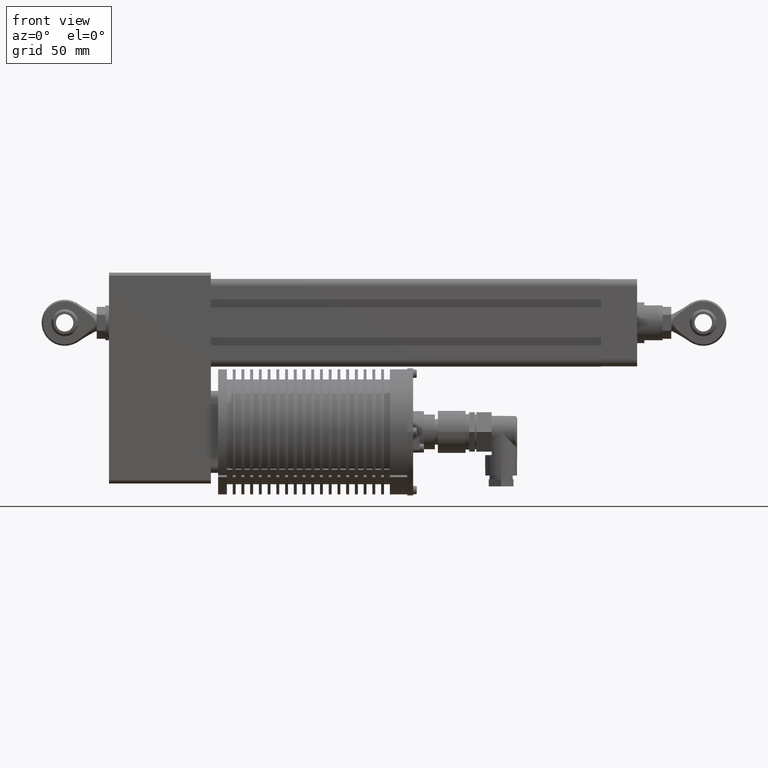
[diagram: clean part render]
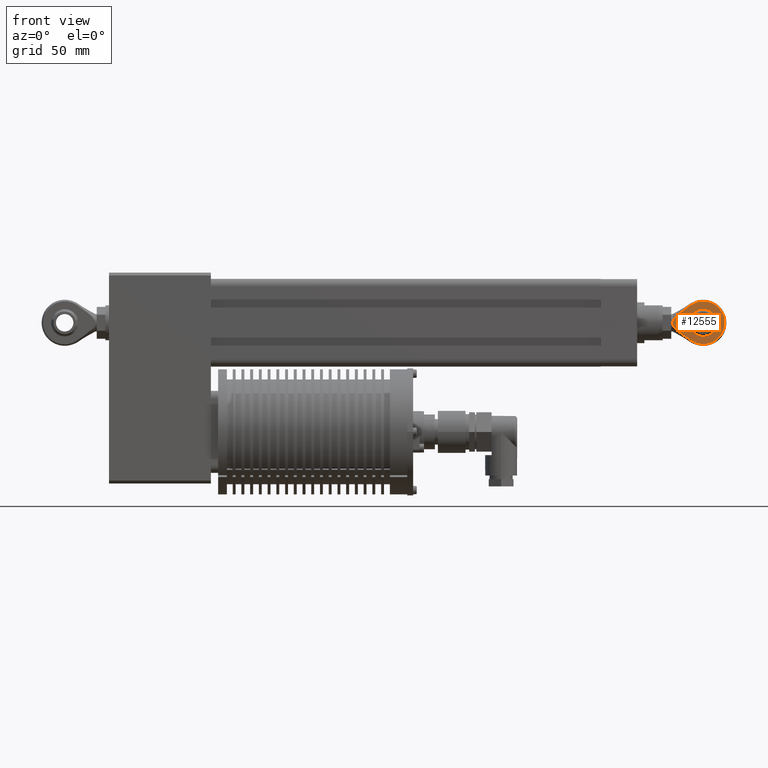
[diagram: same view with one face highlighted and labeled with its STEP entity id]
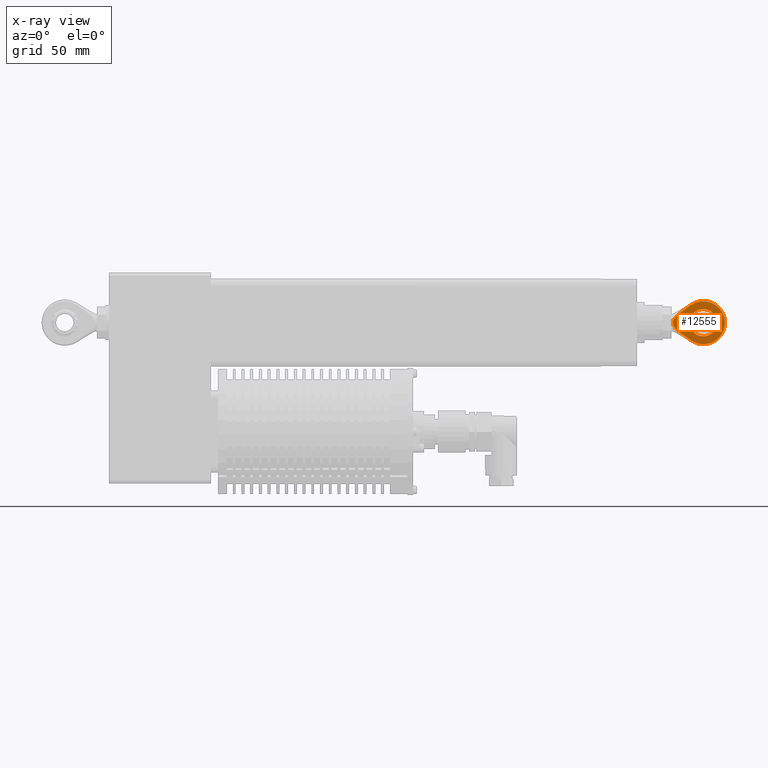
[diagram: x-ray of the same camera — body ghosted, the highlighted face saturated]
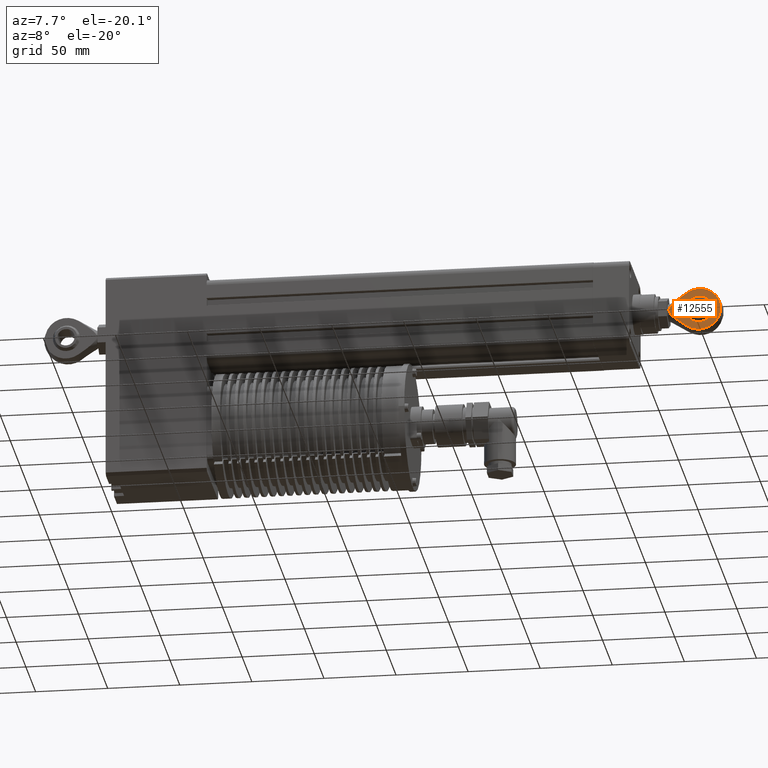
[diagram: same view with one face highlighted and labeled with its STEP entity id]
A machine part, front view. The second image highlights one B-rep face of the part: STEP entity #12555.
The next image is the same camera in x-ray: the body ghosted, the highlighted face saturated — about 0% of this face is hidden behind the body in this view.
A second angle (auxiliary view) of the same face is appended — the face is thin or edge-on in the first view.
In plain terms, the highlighted planar face has unit normal (-0, -1, -0).
Its self-contained STEP definition (entity closure, byte-faithful):
#12310=CARTESIAN_POINT('',(-9.661370550235969,0.0,-6.0));
#12311=VERTEX_POINT('',#12310);
#12328=CARTESIAN_POINT('',(-28.338629449764024,-1.143652E-015,-6.0));
#12329=VERTEX_POINT('',#12328);
#12337=CARTESIAN_POINT('',(-18.999999999999996,9.338629449764028,-6.0));
#12338=VERTEX_POINT('',#12337);
#12339=CARTESIAN_POINT('',(-18.999999999999996,0.0,-6.0));
#12340=DIRECTION('',(0.0,0.0,1.0));
#12341=DIRECTION('',(0.0,-1.0,0.0));
#12342=AXIS2_PLACEMENT_3D('',#12339,#12340,#12341);
#12343=CIRCLE('',#12342,9.338629449764028);
#12344=EDGE_CURVE('',#12338,#12329,#12343,.T.);
#12346=CARTESIAN_POINT('',(-18.999999999999996,0.0,-6.0));
#12347=DIRECTION('',(0.0,0.0,1.0));
#12348=DIRECTION('',(0.0,-1.0,0.0));
#12349=AXIS2_PLACEMENT_3D('',#12346,#12347,#12348);
#12350=CIRCLE('',#12349,9.338629449764028);
#12351=EDGE_CURVE('',#12311,#12338,#12350,.T.);
#12388=CARTESIAN_POINT('',(2.0,0.0,-6.0));
#12389=VERTEX_POINT('',#12388);
#12500=CARTESIAN_POINT('',(35.0,-15.999999999999996,-6.0));
#12501=DIRECTION('',(0.0,0.0,-1.0));
#12502=DIRECTION('',(-1.0,0.0,0.0));
#12503=AXIS2_PLACEMENT_3D('',#12500,#12501,#12502);
#12504=PLANE('',#12503);
#12505=CARTESIAN_POINT('',(-10.721472955435168,-12.307151984614830,-6.0));
#12506=VERTEX_POINT('',#12505);
#12507=CARTESIAN_POINT('',(2.0,0.0,-6.0));
#12508=CARTESIAN_POINT('',(2.000000000000007,-3.749927856731750,-5.999999999999999));
#12509=CARTESIAN_POINT('',(-10.721472955435171,-12.307151984614833,-6.0));
#12517=(BOUNDED_CURVE()B_SPLINE_CURVE(2,(#12507,#12508,#12509),.UNSPECIFIED.,.F.,.U.)B_SPLINE_CURVE_WITH_KNOTS((3,3),(18.002895112008090,36.005790224016181),.UNSPECIFIED.)CURVE()GEOMETRIC_REPRESENTATION_ITEM()RATIONAL_B_SPLINE_CURVE((1.0,1.281009433047813,1.0))REPRESENTATION_ITEM(''));
#12518=EDGE_CURVE('',#12389,#12506,#12517,.T.);
#12519=ORIENTED_EDGE('',*,*,#12518,.T.);
#12520=CARTESIAN_POINT('',(-10.721472955435168,12.307151984614830,-6.0));
#12521=VERTEX_POINT('',#12520);
#12522=CARTESIAN_POINT('',(-18.999999999999996,0.0,-6.0));
#12523=DIRECTION('',(0.0,0.0,-1.0));
#12524=DIRECTION('',(0.0,-1.0,0.0));
#12525=AXIS2_PLACEMENT_3D('',#12522,#12523,#12524);
#12526=CIRCLE('',#12525,14.832396974191326);
#12527=EDGE_CURVE('',#12506,#12521,#12526,.T.);
#12528=ORIENTED_EDGE('',*,*,#12527,.T.);
#12529=CARTESIAN_POINT('',(-10.721472955435171,12.307151984614833,-6.0));
#12530=CARTESIAN_POINT('',(2.000000000000007,3.749927856731750,-5.999999999999999));
#12531=CARTESIAN_POINT('',(2.0,0.0,-6.0));
#12539=(BOUNDED_CURVE()B_SPLINE_CURVE(2,(#12529,#12530,#12531),.UNSPECIFIED.,.F.,.U.)B_SPLINE_CURVE_WITH_KNOTS((3,3),(0.0,18.002895112008090),.UNSPECIFIED.)CURVE()GEOMETRIC_REPRESENTATION_ITEM()RATIONAL_B_SPLINE_CURVE((1.0,1.281009433047813,1.0))REPRESENTATION_ITEM(''));
#12540=EDGE_CURVE('',#12521,#12389,#12539,.T.);
#12541=ORIENTED_EDGE('',*,*,#12540,.T.);
#12542=EDGE_LOOP('',(#12519,#12528,#12541));
#12543=FACE_OUTER_BOUND('',#12542,.T.);
#12544=ORIENTED_EDGE('',*,*,#12344,.T.);
#12545=CARTESIAN_POINT('',(-18.999999999999996,0.0,-6.0));
#12546=DIRECTION('',(0.0,0.0,1.0));
#12547=DIRECTION('',(0.0,-1.0,0.0));
#12548=AXIS2_PLACEMENT_3D('',#12545,#12546,#12547);
#12549=CIRCLE('',#12548,9.338629449764028);
#12550=EDGE_CURVE('',#12329,#12311,#12549,.T.);
#12551=ORIENTED_EDGE('',*,*,#12550,.T.);
#12552=ORIENTED_EDGE('',*,*,#12351,.T.);
#12553=EDGE_LOOP('',(#12544,#12551,#12552));
#12554=FACE_BOUND('',#12553,.T.);
#12555=ADVANCED_FACE('',(#12543,#12554),#12504,.T.);